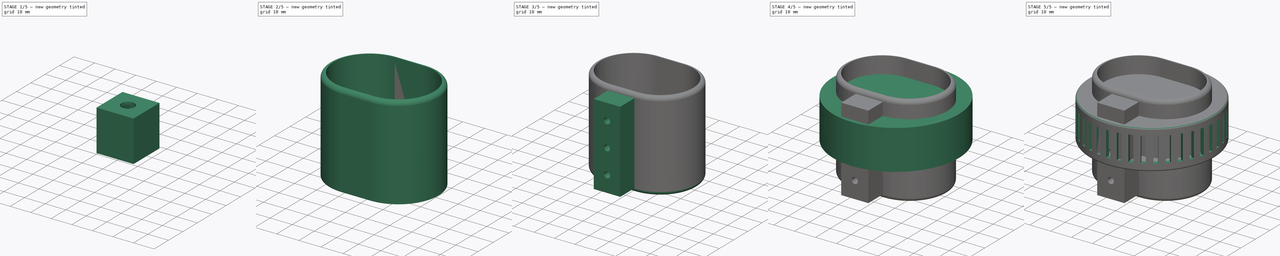
[diagram: build sequence overview — one tinted view per stage of 5, left to right]
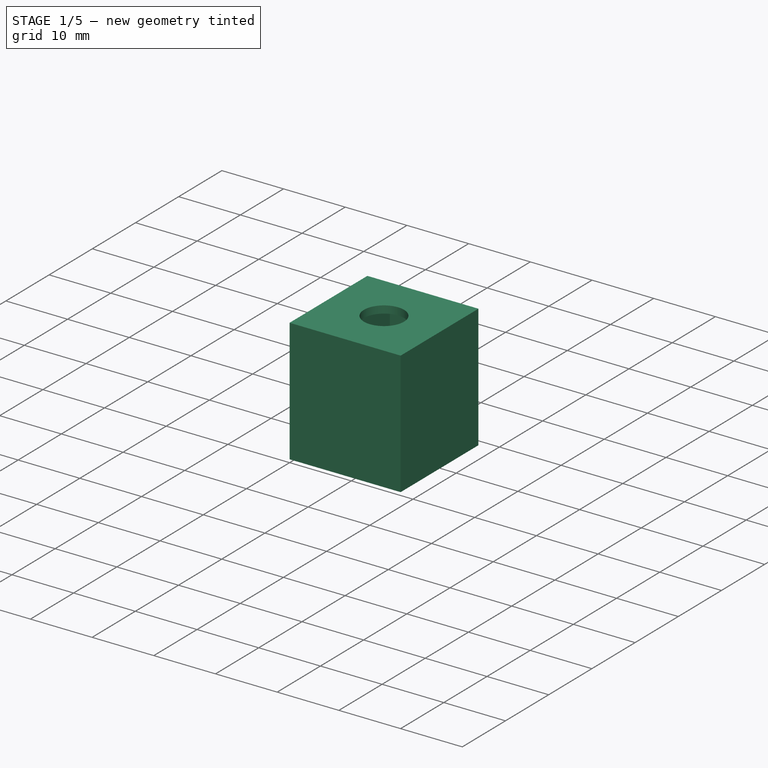
[diagram: stage 1 of 5 — iso view after this stage's code; geometry added in this stage tinted green]
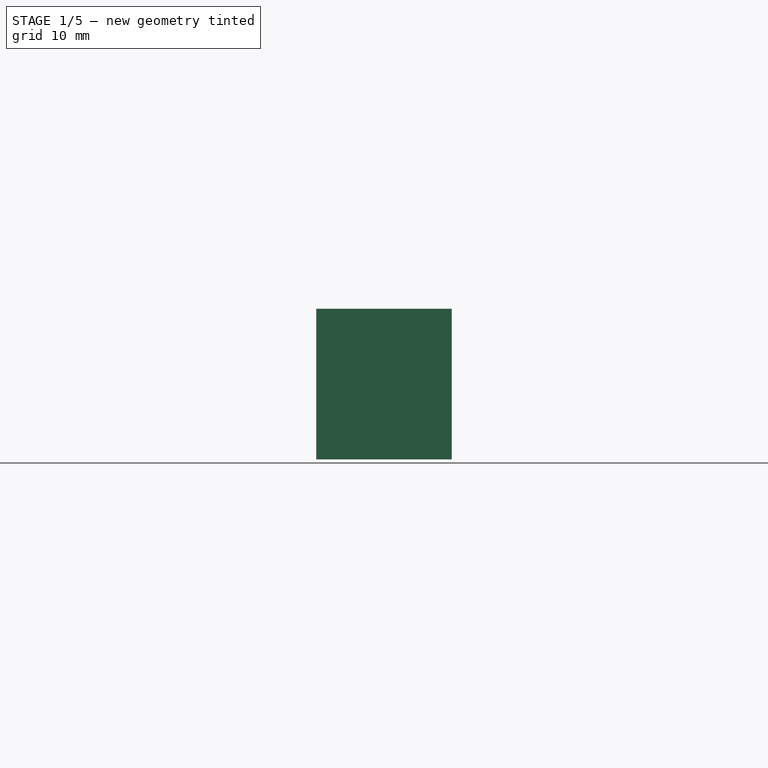
[diagram: stage 1 of 5 — front view after this stage's code; geometry added in this stage tinted green]
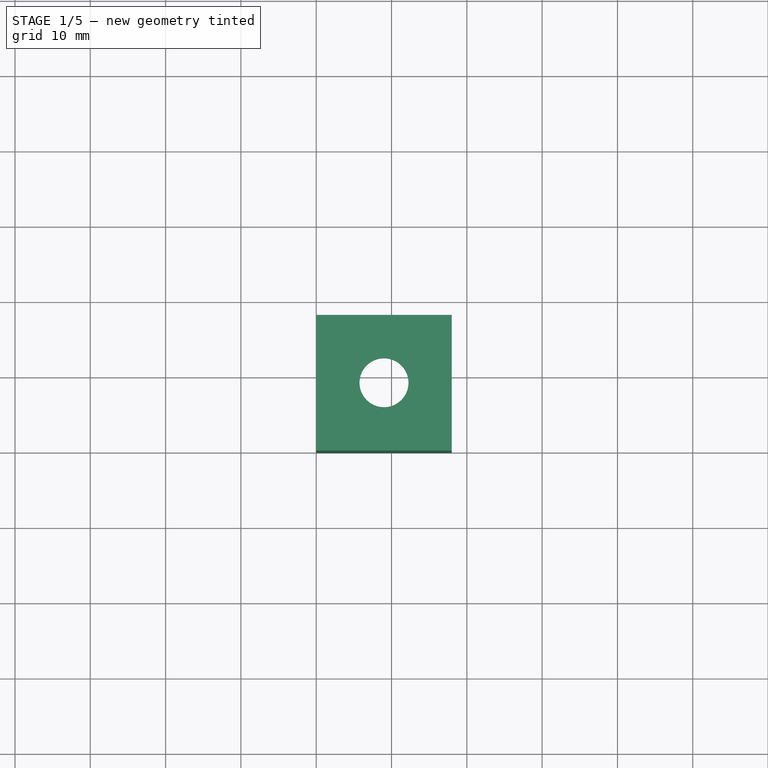
[diagram: stage 1 of 5 — top view after this stage's code; geometry added in this stage tinted green]
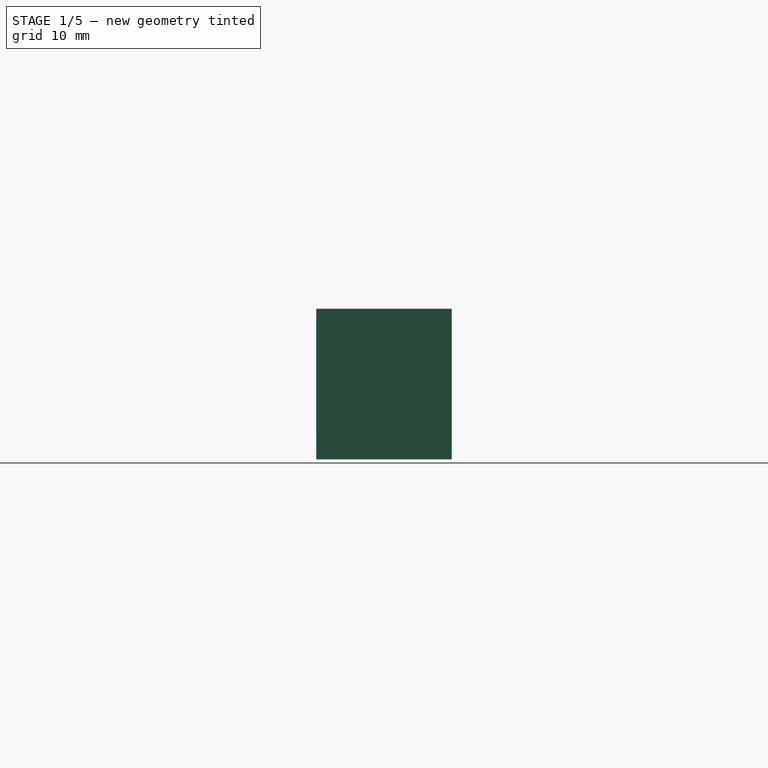
[diagram: stage 1 of 5 — right view after this stage's code; geometry added in this stage tinted green]
FCSTD DOCUMENT  (FreeCAD 0.19R22198 (Git))
Label: Pond Vacuum Cleaner Adapter
License: All rights reserved
LicenseURL: http://en.wikipedia.org/wiki/All_rights_reserved
objects: Sketcher::SketchObject×11, PartDesign::Pad×9, PartDesign::Pocket×4, PartDesign::Body×4, PartDesign::Thickness×3, PartDesign::Line×1, PartDesign::PolarPattern×1, PartDesign::Fillet×1, Part::Cut×1
note: 52 computed .brp shape members not serialized (recipe doc carries the construction recipe); baked Part::Feature solids carry a one-line shape summary decoded from their .brp

FEATURE [PartDesign::Body] Body002  label="Attachment"
  Group = -> [Sketch005,Pad005,Thickness001,Pocket001,Sketch006,Pad006]
  Origin = -> Origin002
  Placement = pos=(69,0,0) rot=(0,0,1;0rad)
  Tip = -> Pad006
FEATURE [Sketcher::SketchObject] Sketch007
  MapMode = 5
  Support = -> [XY_Plane003]
  sketch-geometry (4):
    g0: LineSegment StartX=0 StartY=0 StartZ=0 EndX=18 EndY=0 EndZ=0
    g1: LineSegment StartX=18 StartY=0 StartZ=0 EndX=18 EndY=18 EndZ=0
    g2: LineSegment StartX=18 StartY=18 StartZ=0 EndX=0 EndY=18 EndZ=0
    g3: LineSegment StartX=0 StartY=18 StartZ=0 EndX=0 EndY=0 EndZ=0
  constraints (11):
    c: Coincident(g0,g1)
    c: Coincident(g1,g2)
    c: Coincident(g2,g3)
    c: Coincident(g3,g0)
    c: Horizontal(g0)
    c: Horizontal(g2)
    c: Vertical(g1)
    c: Vertical(g3)
    c: Coincident(g0,g-1)
    c: DistanceY(g3,g3) = 18
    c: DistanceX(g2,g2) = 18
FEATURE [PartDesign::Pad] Pad007
  Length = 20
  Length2 = 100
  Profile = -> Sketch007
  Type = 0
FEATURE [PartDesign::Thickness] Thickness002
  Base = -> Pad007 [Face5]
  BaseFeature = -> Pad007
  Intersection = false
  Join = 1
  Mode = 0
  Reversed = true
  SupportTransform = false
  Value = 1.2
FEATURE [Sketcher::SketchObject] Sketch008
  ExternalGeometry = -> [Thickness002]
  MapMode = 5
  Placement = pos=(0,0,20) rot=(0,0,1;0rad)
  Support = -> [Thickness002]
  sketch-geometry (1):
    g0: Circle CenterX=9 CenterY=9 CenterZ=0 NormalX=0 NormalY=0 NormalZ=1 AngleXU=0 Radius=3.25
  constraints (2):
    c: Diameter(g0) = 6.5
    c: Symmetric(g-1,g-3,g0)
FEATURE [PartDesign::Pocket] Pocket002
  BaseFeature = -> Thickness002
  Length = 5
  Length2 = 100
  Profile = -> Sketch008
  Type = 0
FEATURE [Sketcher::SketchObject] Sketch009
  ExternalGeometry = -> [Pocket002]
  MapMode = 5
  Placement = pos=(0,0,0) rot=(1,0,0;3.14159rad)
  Support = -> [Pocket002]
  sketch-geometry (8):
    g0: LineSegment StartX=1.2 StartY=-1.2 StartZ=0 EndX=4.5 EndY=-1.2 EndZ=0
    g1: LineSegment StartX=4.5 StartY=-1.2 StartZ=0 EndX=4.5 EndY=-16.8 EndZ=0
    g2: LineSegment StartX=4.5 StartY=-16.8 StartZ=0 EndX=1.2 EndY=-16.8 EndZ=0
    g3: LineSegment StartX=1.2 StartY=-16.8 StartZ=0 EndX=1.2 EndY=-1.2 EndZ=0
    g4: LineSegment StartX=16.8 StartY=-1.2 StartZ=0 EndX=13.5 EndY=-1.2 EndZ=0
    g5: LineSegment StartX=13.5 StartY=-1.2 StartZ=0 EndX=13.5 EndY=-16.8 EndZ=0
    g6: LineSegment StartX=13.5 StartY=-16.8 StartZ=0 EndX=16.8 EndY=-16.8 EndZ=0
    g7: LineSegment StartX=16.8 StartY=-16.8 StartZ=0 EndX=16.8 EndY=-1.2 EndZ=0
  constraints (23):
    c: Coincident(g0,g1)
    c: Coincident(g1,g2)
    c: Coincident(g2,g3)
    c: Coincident(g3,g0)
    c: Horizontal(g0)
    c: Horizontal(g2)
    c: Vertical(g1)
    c: Vertical(g3)
    c: Coincident(g0,g-3)
    c: PointOnObject(g1,g-4)
    c: Coincident(g4,g5)
    c: Coincident(g5,g6)
    c: Coincident(g6,g7)
    c: Coincident(g7,g4)
    c: Horizontal(g4)
    c: Horizontal(g6)
    c: Vertical(g5)
    c: Vertical(g7)
    c: Coincident(g4,g-3)
    c: PointOnObject(g5,g-4)
    c: Distance(g-3) = 15.6
    c: DistanceX(g0,g4) = 9
    c: Equal(g0,g4)
FEATURE [PartDesign::Pad] Pad008
  BaseFeature = -> Pocket002
  Length = 10
  Length2 = 100
  Profile = -> Sketch009
  Reversed = true
  Type = 3
  UpToFace = -> Pocket002 [Face12]
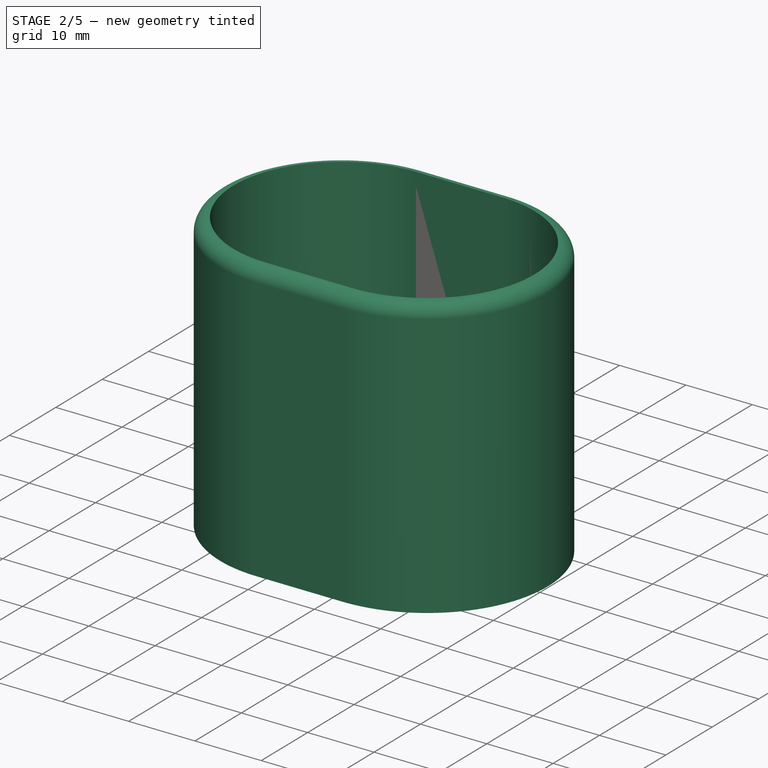
[diagram: stage 2 of 5 — iso view after this stage's code; geometry added in this stage tinted green]
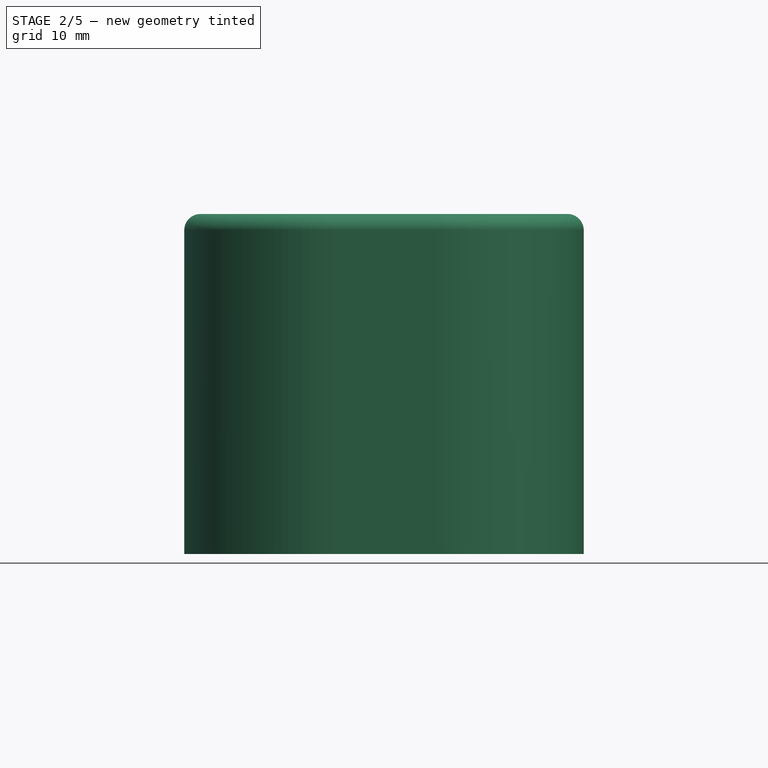
[diagram: stage 2 of 5 — front view after this stage's code; geometry added in this stage tinted green]
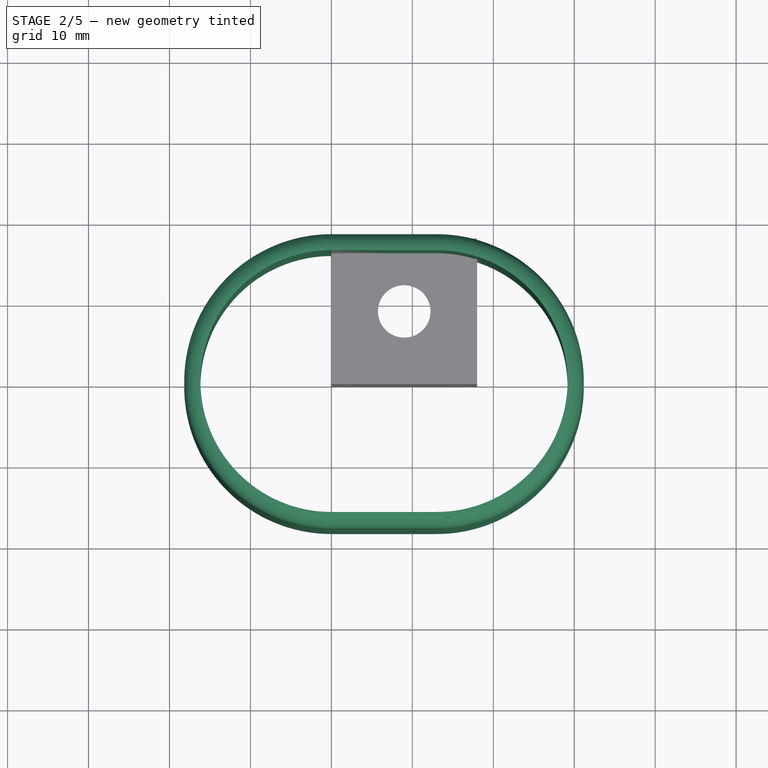
[diagram: stage 2 of 5 — top view after this stage's code; geometry added in this stage tinted green]
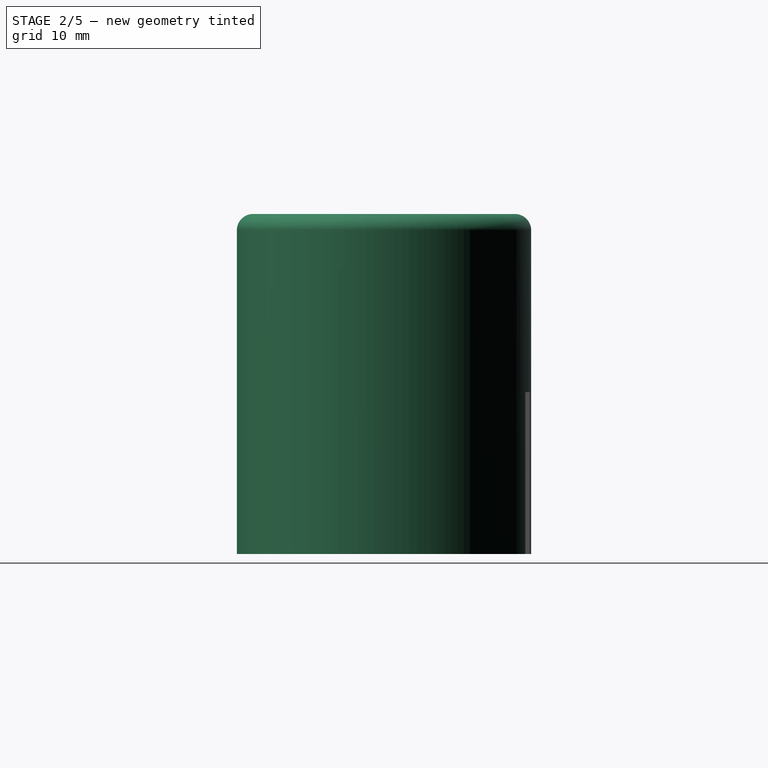
[diagram: stage 2 of 5 — right view after this stage's code; geometry added in this stage tinted green]
FEATURE [Sketcher::SketchObject] Sketch005
  MapMode = 5
  Support = -> [XY_Plane002]
  sketch-geometry (8):
    g0: ArcOfCircle CenterX=0 CenterY=0 CenterZ=0 NormalX=0 NormalY=0 NormalZ=1 AngleXU=0 Radius=16.175 StartAngle=1.5708 EndAngle=4.71239
    g1: LineSegment StartX=1e-15 StartY=16.175 StartZ=0 EndX=13 EndY=16.175 EndZ=0
    g2: LineSegment StartX=-3e-15 StartY=-16.175 StartZ=0 EndX=13 EndY=-16.175 EndZ=0
    g3: ArcOfCircle CenterX=13 CenterY=-1.2e-15 CenterZ=0 NormalX=0 NormalY=0 NormalZ=1 AngleXU=0 Radius=16.175 StartAngle=4.71239 EndAngle=7.85398
    g4: LineSegment [constr] StartX=-16.175 StartY=0 StartZ=0 EndX=29.175 EndY=0 EndZ=0
    g5: LineSegment [constr] StartX=0 StartY=0 StartZ=0 EndX=6.5 EndY=-6e-16 EndZ=0
    g6: LineSegment [constr] StartX=6.5 StartY=-6e-16 StartZ=0 EndX=6.5 EndY=-1 EndZ=0
    g7: LineSegment [constr] StartX=6.5 StartY=-1 StartZ=0 EndX=0 EndY=-1 EndZ=0
  constraints (25):
    c: Coincident(g0,g-1)
    c: PointOnObject(g0,g-2)
    c: PointOnObject(g0,g-2)
    c: Coincident(g1,g0)
    c: Horizontal(g1)
    c: Coincident(g2,g0)
    c: Horizontal(g2)
    c: Equal(g1,g2)
    c: Coincident(g3,g1)
    c: Coincident(g3,g2)
    c: Vertical(g1,g3)
    c: PointOnObject(g4,g0)
    c: PointOnObject(g4,g3)
    c: Horizontal(g4)
    c: PointOnObject(g0,g4)
    c: DistanceX(g4,g4) = 45.35
    c: DistanceY(g0,g0) = 32.35
    c: Coincident(g5,g0)
    c: Symmetric(g0,g3,g5)
    c: Coincident(g6,g5)
    c: Vertical(g6)
    c: Coincident(g7,g6)
    c: PointOnObject(g7,g-2)
    c: Horizontal(g7)
    c: DistanceY(g6,g6) = 1
FEATURE [PartDesign::Pad] Pad005
  Length = 40
  Length2 = 100
  Profile = -> Sketch005
  Type = 0
FEATURE [PartDesign::Thickness] Thickness001
  Base = -> Pad005 [Face5]
  BaseFeature = -> Pad005
  Intersection = false
  Join = 0
  Mode = 0
  SupportTransform = false
  Value = 2
FEATURE [PartDesign::Pocket] Pocket001
  BaseFeature = -> Thickness001
  Length = 5
  Length2 = 100
  Profile = -> Thickness001 [Face5]
  Type = 0
FEATURE [Sketcher::SketchObject] Sketch010
  ExternalGeometry = -> [Pad008]
  MapMode = 5
  Placement = pos=(0,18,0) rot=(0,0.707107,0.707107;3.14159rad)
  Support = -> [Pad008]
  sketch-geometry (2):
    g0: Circle CenterX=-15.8 CenterY=10 CenterZ=0 NormalX=0 NormalY=0 NormalZ=1 AngleXU=0 Radius=1.45
    g1: Circle CenterX=-2.2 CenterY=10 CenterZ=0 NormalX=0 NormalY=0 NormalZ=1 AngleXU=0 Radius=1.45
  constraints (6):
    c: Diameter(g0) = 2.9
    c: Equal(g0,g1)
    c: DistanceX(g1,g-1) = 2.2
    c: DistanceX(g-3,g0) = 2.2
    c: DistanceY(g0,g-3) = 10
    c: DistanceY(g-1,g1) = 10
FEATURE [PartDesign::Pocket] Pocket003
  BaseFeature = -> Pad008
  Length = 10
  Length2 = 100
  Profile = -> Sketch010
  Type = 1
FEATURE [PartDesign::Body] Body003  label="Switch box"
  Group = -> [Sketch007,Pad007,Thickness002,Sketch008,Pocket002,Sketch009,Pad008,Sketch010,Pocket003]
  Origin = -> Origin003
  Placement = pos=(-75,0,0) rot=(0,0,1;0rad)
  Tip = -> Pocket003
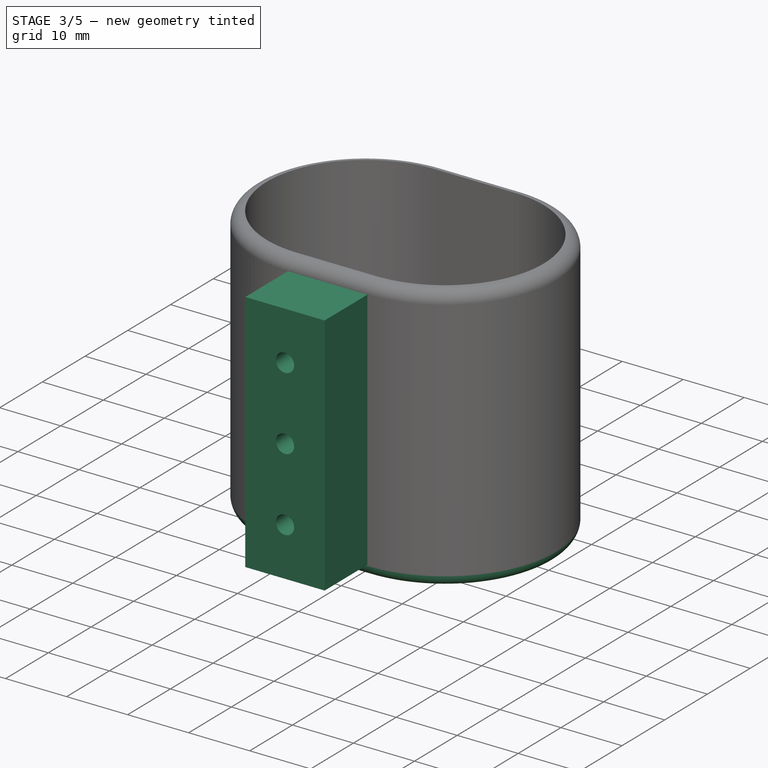
[diagram: stage 3 of 5 — iso view after this stage's code; geometry added in this stage tinted green]
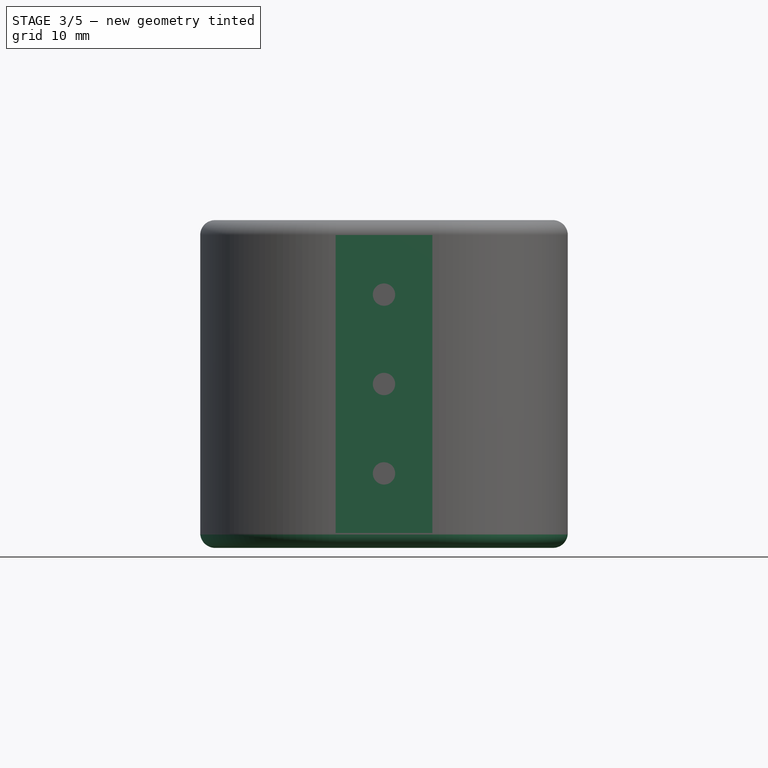
[diagram: stage 3 of 5 — front view after this stage's code; geometry added in this stage tinted green]
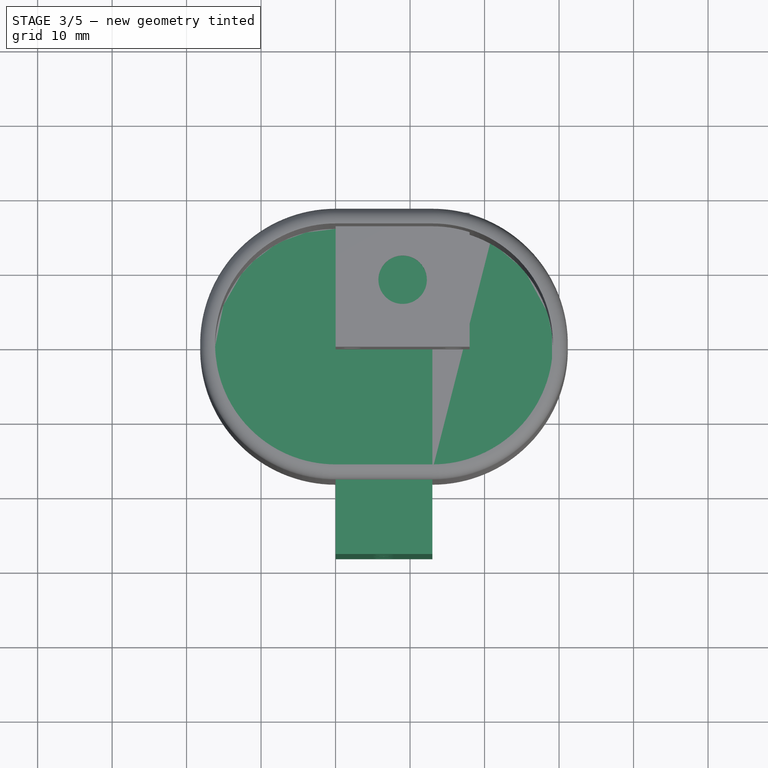
[diagram: stage 3 of 5 — top view after this stage's code; geometry added in this stage tinted green]
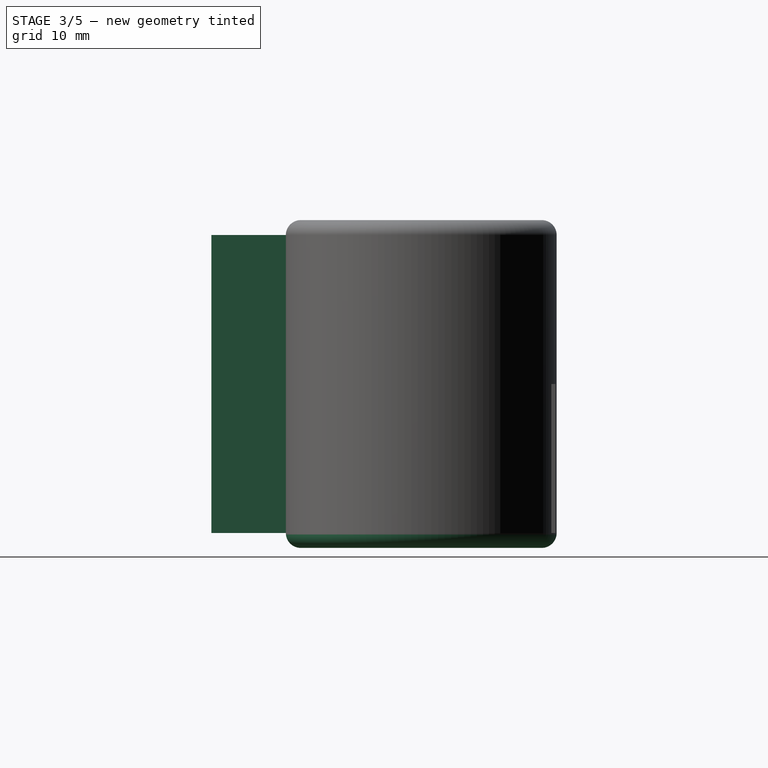
[diagram: stage 3 of 5 — right view after this stage's code; geometry added in this stage tinted green]
FEATURE [Sketcher::SketchObject] Sketch
  MapMode = 5
  Support = -> [XY_Plane]
  sketch-geometry (8):
    g0: ArcOfCircle CenterX=0 CenterY=0 CenterZ=0 NormalX=0 NormalY=0 NormalZ=1 AngleXU=0 Radius=16.175 StartAngle=1.5708 EndAngle=4.71239
    g1: LineSegment StartX=1e-15 StartY=16.175 StartZ=0 EndX=13 EndY=16.175 EndZ=0
    g2: LineSegment StartX=-3e-15 StartY=-16.175 StartZ=0 EndX=13 EndY=-16.175 EndZ=0
    g3: ArcOfCircle CenterX=13 CenterY=-1.2e-15 CenterZ=0 NormalX=0 NormalY=0 NormalZ=1 AngleXU=0 Radius=16.175 StartAngle=4.71239 EndAngle=7.85398
    g4: LineSegment [constr] StartX=-16.175 StartY=0 StartZ=0 EndX=29.175 EndY=0 EndZ=0
    g5: LineSegment [constr] StartX=0 StartY=0 StartZ=0 EndX=6.5 EndY=-6e-16 EndZ=0
    g6: LineSegment [constr] StartX=6.5 StartY=-6e-16 StartZ=0 EndX=6.5 EndY=-1 EndZ=0
    g7: LineSegment [constr] StartX=6.5 StartY=-1 StartZ=0 EndX=0 EndY=-1 EndZ=0
  constraints (25):
    c: Coincident(g0,g-1)
    c: PointOnObject(g0,g-2)
    c: PointOnObject(g0,g-2)
    c: Coincident(g1,g0)
    c: Horizontal(g1)
    c: Coincident(g2,g0)
    c: Horizontal(g2)
    c: Equal(g1,g2)
    c: Coincident(g3,g1)
    c: Coincident(g3,g2)
    c: Vertical(g1,g3)
    c: PointOnObject(g4,g0)
    c: PointOnObject(g4,g3)
    c: Horizontal(g4)
    c: PointOnObject(g0,g4)
    c: DistanceX(g4,g4) = 45.35
    c: DistanceY(g0,g0) = 32.35
    c: Coincident(g5,g0)
    c: Symmetric(g0,g3,g5)
    c: Coincident(g6,g5)
    c: Vertical(g6)
    c: Coincident(g7,g6)
    c: PointOnObject(g7,g-2)
    c: Horizontal(g7)
    c: DistanceY(g6,g6) = 1
FEATURE [PartDesign::Pad] Pad
  Length = 15
  Length2 = 100
  Profile = -> Sketch
  Type = 0
FEATURE [PartDesign::Thickness] Thickness
  Base = -> Pad [Face6]
  BaseFeature = -> Pad
  Intersection = false
  Join = 0
  Mode = 0
  SupportTransform = false
  Value = 2
FEATURE [Sketcher::SketchObject] Sketch006
  ExternalGeometry = -> [Pocket001]
  MapMode = 5
  Placement = pos=(0,-18.175,0) rot=(1,0,0;1.5708rad)
  Support = -> [Pocket001]
  sketch-geometry (9):
    g0: LineSegment [constr] StartX=0 StartY=0 StartZ=0 EndX=13 EndY=0 EndZ=0
    g1: LineSegment StartX=0 StartY=0 StartZ=0 EndX=13 EndY=0 EndZ=0
    g2: LineSegment StartX=13 StartY=0 StartZ=0 EndX=13 EndY=40 EndZ=0
    g3: LineSegment StartX=13 StartY=40 StartZ=0 EndX=0 EndY=40 EndZ=0
    g4: LineSegment StartX=0 StartY=40 StartZ=0 EndX=0 EndY=0 EndZ=0
    g5: Circle CenterX=6.5 CenterY=32 CenterZ=0 NormalX=0 NormalY=0 NormalZ=1 AngleXU=0 Radius=1.5
    g6: Circle CenterX=6.5 CenterY=20 CenterZ=0 NormalX=0 NormalY=0 NormalZ=1 AngleXU=0 Radius=1.5
    g7: Circle CenterX=6.5 CenterY=8 CenterZ=0 NormalX=0 NormalY=0 NormalZ=1 AngleXU=0 Radius=1.5
    g8: GeomPoint X=6.5 Y=0 Z=0
  constraints (22):
    c: Coincident(g0,g-1)
    c: Coincident(g0,g-3)
    c: Coincident(g1,g2)
    c: Coincident(g2,g3)
    c: Coincident(g3,g4)
    c: Coincident(g4,g1)
    c: Horizontal(g1)
    c: Horizontal(g3)
    c: Vertical(g2)
    c: Vertical(g4)
    c: Horizontal(g2,g-3)
    c: DistanceX(g3,g3) = 13
    c: Coincident(g1,g-1)
    c: Equal(g5,g6)
    c: Equal(g6,g7)
    c: Symmetric(g1,g1,g8)
    c: Vertical(g5,g6)
    c: Vertical(g6,g7)
    c: Symmetric(g2,g1,g6)
    c: DistanceY(g7,g6) = 12
    c: DistanceY(g6,g5) = 12
    c: Diameter(g5) = 3
FEATURE [PartDesign::Pad] Pad006
  BaseFeature = -> Pocket001
  Length = 10
  Length2 = 100
  Profile = -> Sketch006
  Type = 0
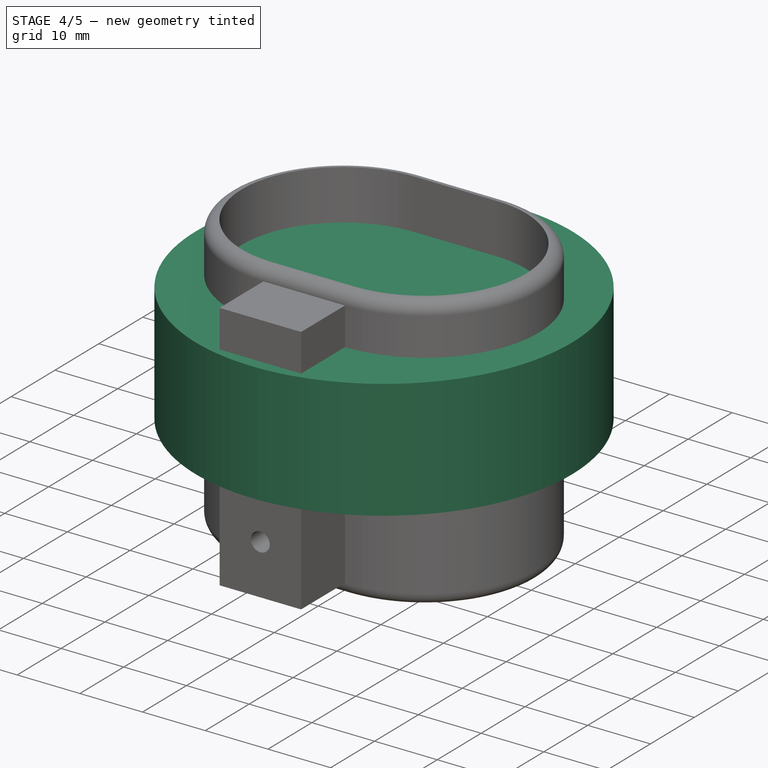
[diagram: stage 4 of 5 — iso view after this stage's code; geometry added in this stage tinted green]
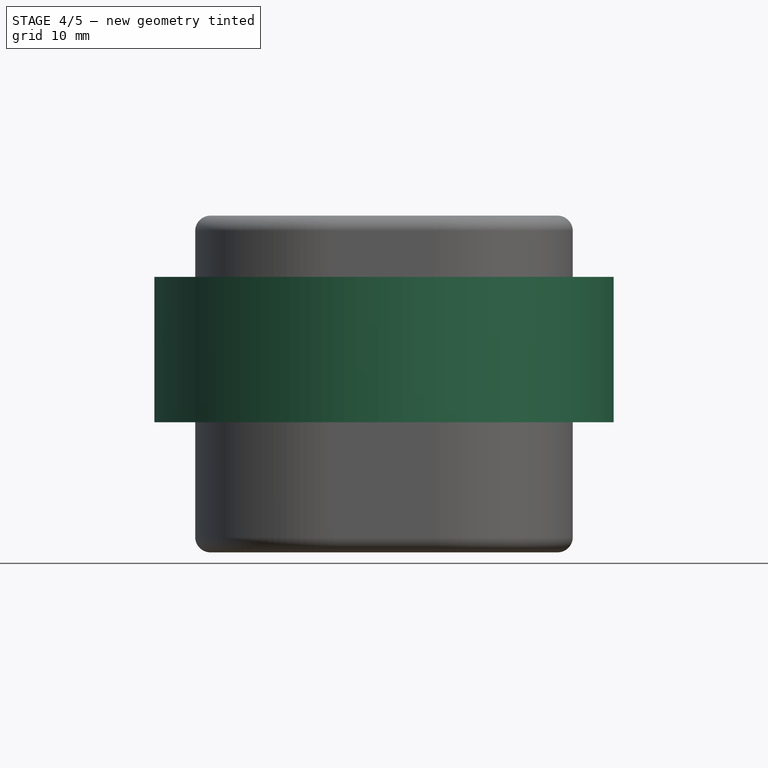
[diagram: stage 4 of 5 — front view after this stage's code; geometry added in this stage tinted green]
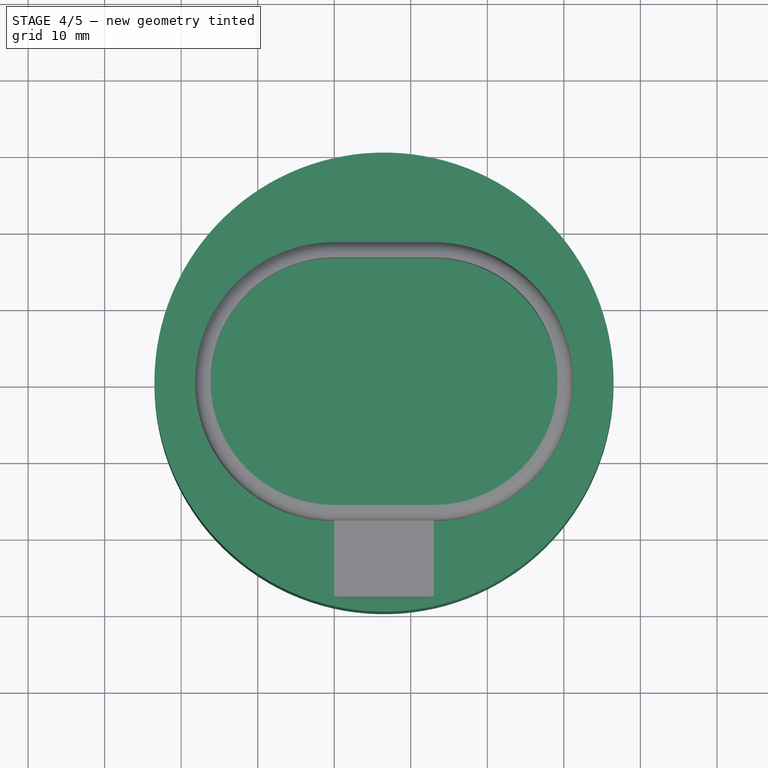
[diagram: stage 4 of 5 — top view after this stage's code; geometry added in this stage tinted green]
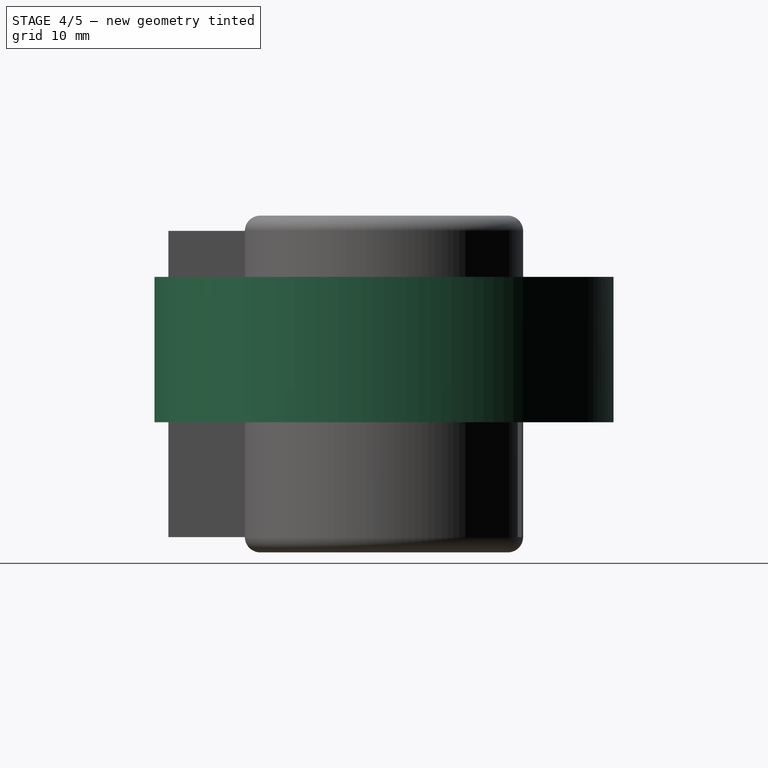
[diagram: stage 4 of 5 — right view after this stage's code; geometry added in this stage tinted green]
FEATURE [PartDesign::Pocket] Pocket
  BaseFeature = -> Thickness
  Length = 5
  Length2 = 100
  Profile = -> Thickness [Face5]
  Type = 0
FEATURE [Sketcher::SketchObject] Sketch001
  ExternalGeometry = -> [Pocket]
  MapMode = 5
  Placement = pos=(0,0,15) rot=(0,0,1;0rad)
  Support = -> [Pocket]
  sketch-geometry (5):
    g0: ArcOfCircle CenterX=0 CenterY=0 CenterZ=0 NormalX=0 NormalY=0 NormalZ=1 AngleXU=0 Radius=16.175 StartAngle=1.5708 EndAngle=4.71239
    g1: ArcOfCircle CenterX=13 CenterY=1e-15 CenterZ=0 NormalX=0 NormalY=0 NormalZ=1 AngleXU=0 Radius=16.175 StartAngle=4.71239 EndAngle=7.85398
    g2: LineSegment StartX=-6.2e-15 StartY=16.175 StartZ=0 EndX=13 EndY=16.175 EndZ=0
    g3: LineSegment StartX=-3e-15 StartY=-16.175 StartZ=0 EndX=13 EndY=-16.175 EndZ=0
    g4: Circle CenterX=6.5 CenterY=0 CenterZ=0 NormalX=0 NormalY=0 NormalZ=1 AngleXU=0 Radius=30
  constraints (13):
    c: Coincident(g0,g-1)
    c: Coincident(g0,g-4)
    c: Coincident(g0,g-6)
    c: Coincident(g1,g-5)
    c: Coincident(g1,g-5)
    c: Coincident(g1,g-6)
    c: Coincident(g2,g0)
    c: Coincident(g2,g1)
    c: Coincident(g3,g0)
    c: Coincident(g3,g1)
    c: PointOnObject(g4,g-1)
    c: Symmetric(g1,g0,g4)
    c: Diameter(g4) = 60
FEATURE [PartDesign::Pad] Pad001
  BaseFeature = -> Pocket
  Length = 2
  Length2 = 100
  Profile = -> Sketch001
  Type = 0
FEATURE [Sketcher::SketchObject] Sketch002
  ExternalGeometry = -> [Pad001]
  MapMode = 5
  Placement = pos=(0,0,17) rot=(0,0,1;0rad)
  Support = -> [Pad001]
  sketch-geometry (2):
    g0: Circle CenterX=6.5 CenterY=0 CenterZ=0 NormalX=0 NormalY=0 NormalZ=1 AngleXU=0 Radius=30
    g1: Circle CenterX=6.5 CenterY=0 CenterZ=0 NormalX=0 NormalY=0 NormalZ=1 AngleXU=0 Radius=28
  constraints (4):
    c: Diameter(g0) = 60
    c: Symmetric(g-3,g-4,g0)
    c: Coincident(g1,g0)
    c: Diameter(g1) = 56
FEATURE [PartDesign::Pad] Pad002
  BaseFeature = -> Pad001
  Length = 15
  Length2 = 100
  Profile = -> Sketch002
  Type = 0
FEATURE [Sketcher::SketchObject] Sketch003
  ExternalGeometry = -> [Pad002]
  MapMode = 5
  Placement = pos=(0,0,32) rot=(0,0,1;0rad)
  Support = -> [Pad002]
  sketch-geometry (1):
    g0: Circle CenterX=6.5 CenterY=1.3e-15 CenterZ=0 NormalX=0 NormalY=0 NormalZ=1 AngleXU=0 Radius=30
  constraints (2):
    c: Diameter(g0) = 60
    c: Symmetric(g-4,g-3,g0)
FEATURE [PartDesign::Pad] Pad003
  BaseFeature = -> Pad002
  Length = 2
  Length2 = 100
  Profile = -> Sketch003
  Type = 0
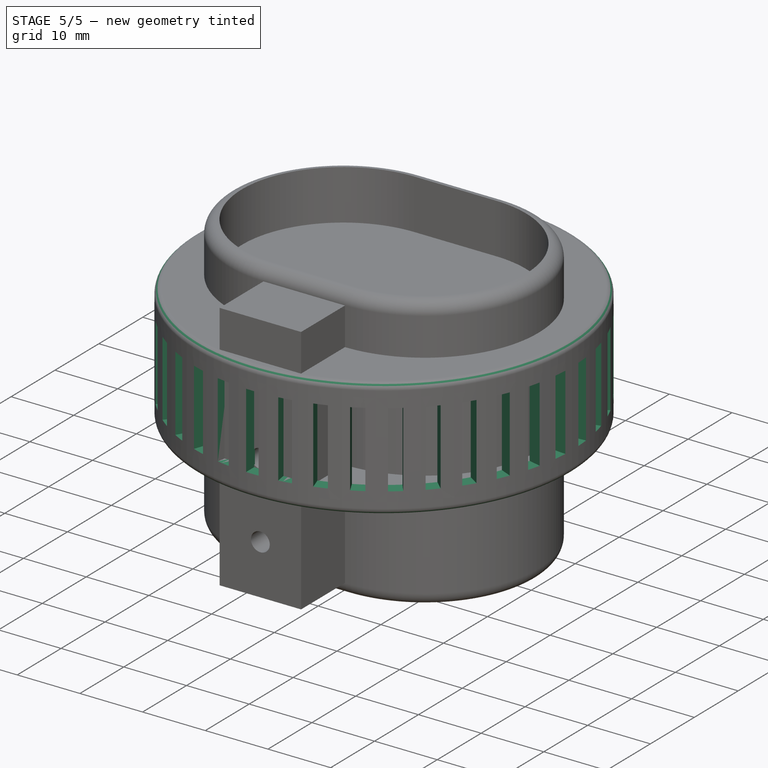
[diagram: stage 5 of 5 — iso view after this stage's code; geometry added in this stage tinted green]
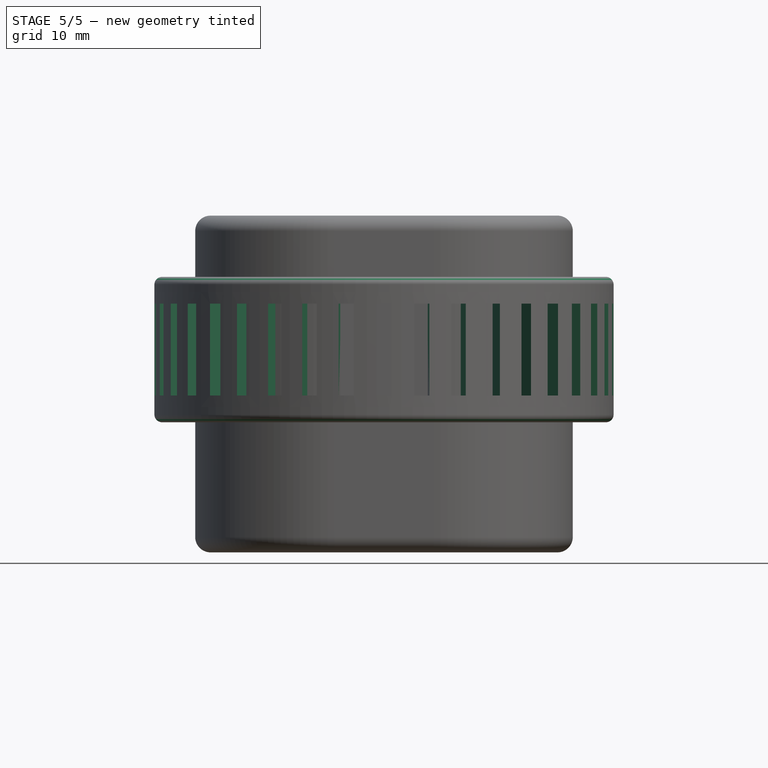
[diagram: stage 5 of 5 — front view after this stage's code; geometry added in this stage tinted green]
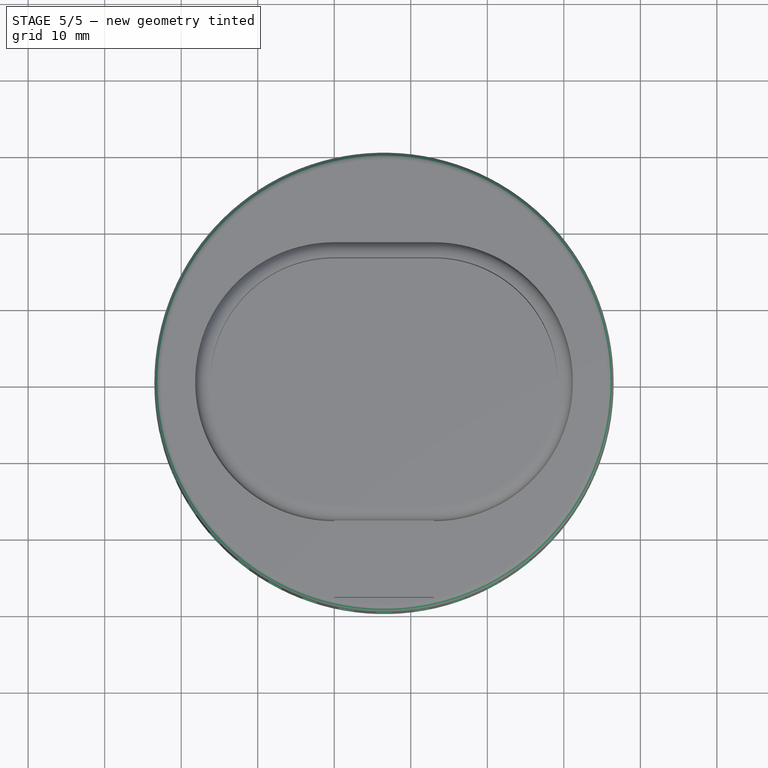
[diagram: stage 5 of 5 — top view after this stage's code; geometry added in this stage tinted green]
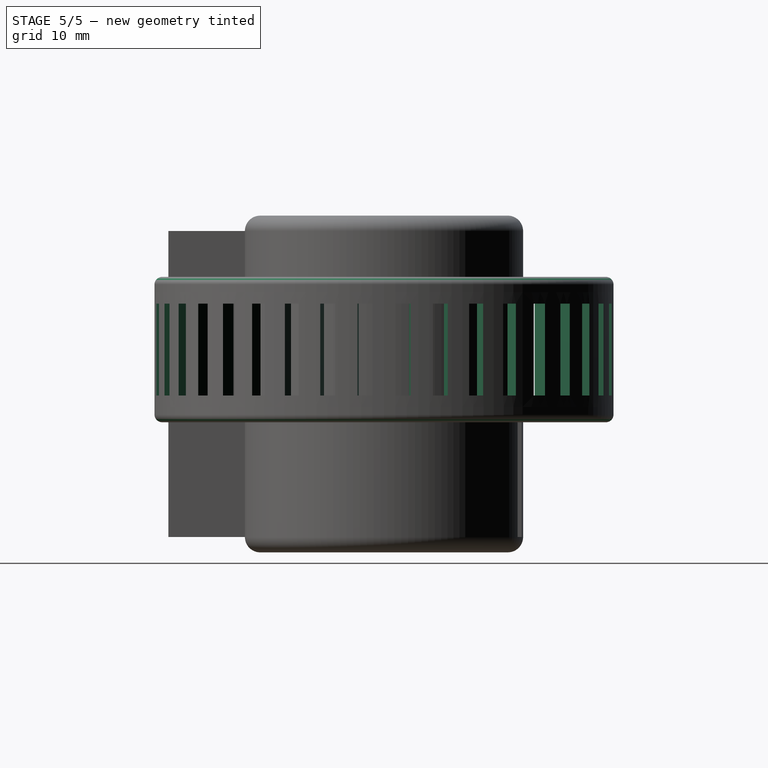
[diagram: stage 5 of 5 — right view after this stage's code; geometry added in this stage tinted green]
FEATURE [Sketcher::SketchObject] Sketch004
  MapMode = 5
  Placement = pos=(0,0,0) rot=(1,0,0;1.5708rad)
  Support = -> [XZ_Plane001]
  sketch-geometry (5):
    g0: LineSegment StartX=5.5 StartY=30.5 StartZ=0 EndX=7.5 EndY=30.5 EndZ=0
    g1: LineSegment StartX=7.5 StartY=30.5 StartZ=0 EndX=7.5 EndY=18.5 EndZ=0
    g2: LineSegment StartX=7.5 StartY=18.5 StartZ=0 EndX=5.5 EndY=18.5 EndZ=0
    g3: LineSegment StartX=5.5 StartY=18.5 StartZ=0 EndX=5.5 EndY=30.5 EndZ=0
    g4: GeomPoint X=6.5 Y=18.5 Z=0
  constraints (13):
    c: Coincident(g0,g1)
    c: Coincident(g1,g2)
    c: Coincident(g2,g3)
    c: Coincident(g3,g0)
    c: Horizontal(g0)
    c: Horizontal(g2)
    c: Vertical(g1)
    c: Vertical(g3)
    c: DistanceX(g0,g0) = 2
    c: DistanceY(g3,g3) = 12
    c: Symmetric(g2,g1,g4)
    c: DistanceX(g-1,g4) = 6.5
    c: DistanceY(g-1,g2) = 18.5
FEATURE [PartDesign::Pad] Pad004
  Length = 31
  Length2 = 31
  Placement = pos=(0,0,0) rot=(1,0,0;1.5708rad)
  Profile = -> Sketch004
  Type = 4
FEATURE [PartDesign::Line] DatumLine
  AttacherType = Attacher::AttachEngineLine
  AttachmentOffset = pos=(6.5,0,0) rot=(0,0,1;0rad)
  Length = 20
  MapMode = 29
  Placement = pos=(6.5,0,2.2e-15) rot=(0,0,1;0rad)
  ResizeMode = 0
  Support = -> [Z_Axis001]
FEATURE [PartDesign::PolarPattern] PolarPattern
  Angle = 360
  Axis = -> DatumLine
  BaseFeature = -> Pad004
  Occurrences = 19
  Originals = -> [Pad004]
  Placement = pos=(0,0,0) rot=(1,0,0;1.5708rad)
FEATURE [PartDesign::Body] Body001
  Group = -> [Sketch004,Pad004,DatumLine,PolarPattern]
  Origin = -> Origin001
  Tip = -> PolarPattern
FEATURE [PartDesign::Fillet] Fillet
  Base = -> Pad003 [Edge47,Edge54]
  BaseFeature = -> Pad003
  Radius = 1
  SupportTransform = false
FEATURE [PartDesign::Body] Body
  Group = -> [Sketch,Pad,Thickness,Pocket,Sketch001,Pad001,Sketch002,Pad002,Sketch003,Pad003,Fillet]
  Origin = -> Origin
  Tip = -> Fillet
FEATURE [Part::Cut] Cut
  Base = -> Body
  Tool = -> Body001
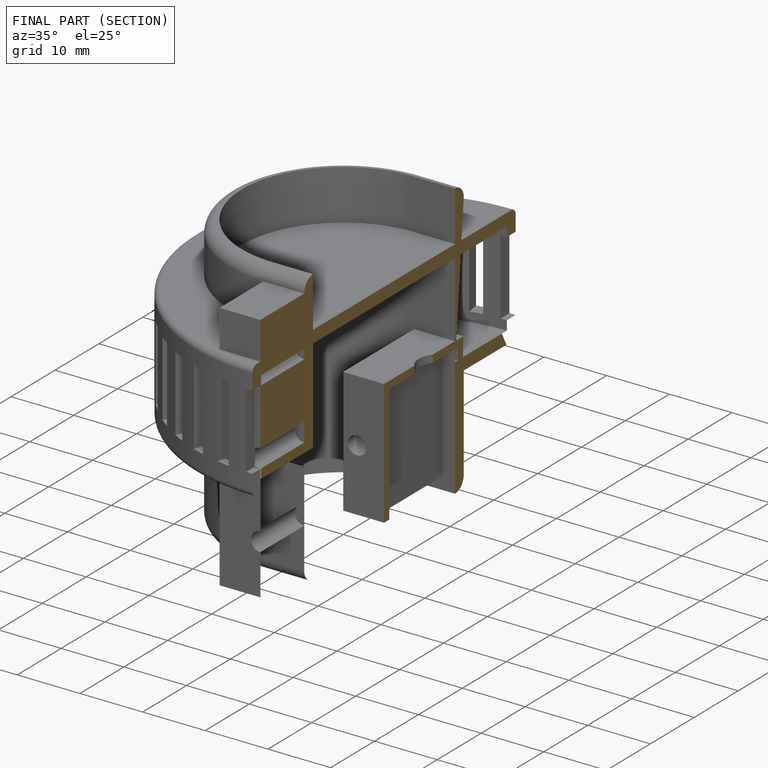
[diagram: finished part — half-section view (interior)]
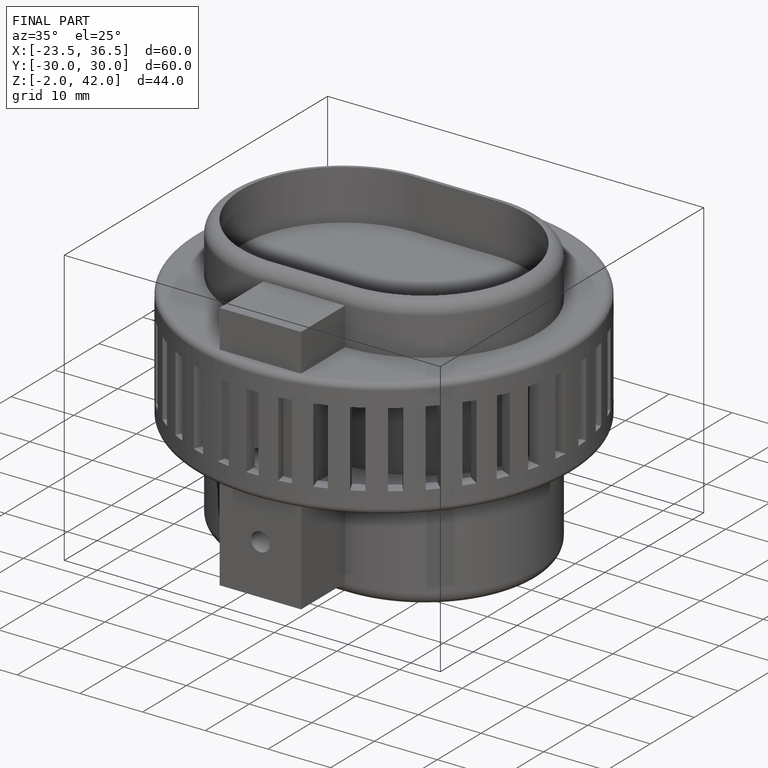
[diagram: finished part — iso view with bounding-box wireframe]
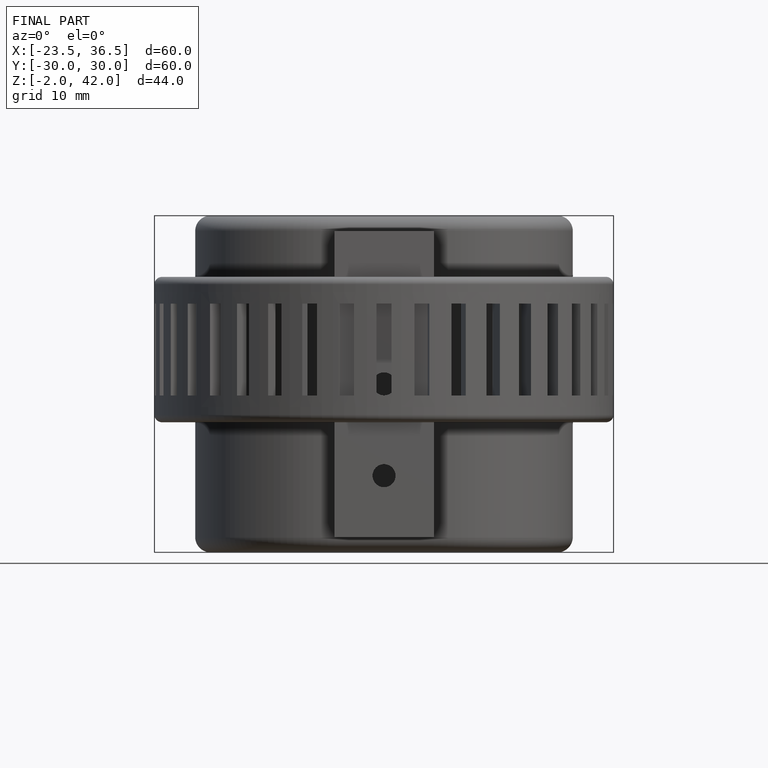
[diagram: finished part — front view with bounding-box wireframe]
